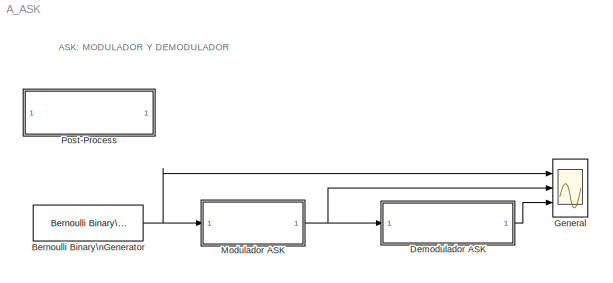
MODEL A_ASK
KIND model
BLOCK [Reference] Bernoulli Binary\nGenerator  REF=commrandsrc2/Bernoulli Binary\nGenerator
  P = PZa
  Ports = [0, 1]
  RTWMemSecDataConstants = Inherit from model
  RTWMemSecDataInternal = Inherit from model
  RTWMemSecDataParameters = Inherit from model
  RTWMemSecFuncExecute = Inherit from model
  RTWMemSecFuncInitTerm = Inherit from model
  SID = 1
  SourceBlock = commrandsrc2/Bernoulli Binary\nGenerator
  SourceProductBaseCode = CM
  SourceType = Bernoulli Binary Generator
  Ts = BSTa
  frameBased = off
  orient = off
  outDataType = double
  sampPerFrame = 1
  seed = 81
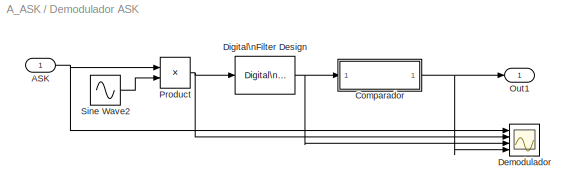
BLOCK [SubSystem] Demodulador ASK
  Ports = [1, 1]
  RequestExecContextInheritance = off
  SID = 17
BLOCK [Inport] Demodulador ASK/ASK
  SID = 18
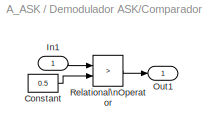
BLOCK [SubSystem] Demodulador ASK/Comparador
  Ports = [1, 1]
  RequestExecContextInheritance = off
  SID = 19
BLOCK [Constant] Demodulador ASK/Comparador/Constant
  SID = 21
  Value = 0.5
BLOCK [Inport] Demodulador ASK/Comparador/In1
  SID = 20
BLOCK [Outport] Demodulador ASK/Comparador/Out1
  SID = 23
BLOCK [RelationalOperator] Demodulador ASK/Comparador/Relational\nOperator
  InputSameDT = off
  Operator = >
  OutDataTypeStr = boolean
  Ports = [2, 1]
  SID = 22
BLOCK [Scope] Demodulador ASK/Demodulador
  Floating = off
  NumInputPorts = 4
  Ports = [4]
  SID = 26
  ScopeSpecificationString = Simulink.scopes.TimeScopeBlockCfg('CurrentConfiguration', extmgr.ConfigurationSet(extmgr.Configuration('Core','General UI',true),extmgr.Configuration('Core','Source UI',true),extmgr.Configuration('Sources','WiredSimulink',true,'DataLoggingSaveFormat','StructureWithTime','DataLoggingDecimation','1','DataLoggingDecimateData',true),extmgr.Configuration('Visuals','Time Domain',true,'SerializedDisplays...<+3682ch>
BLOCK [Reference] Demodulador ASK/Digital\nFilter Design  REF=dsparch4/Digital\nFilter Design
  Ports = [1, 1]
  RTWMemSecDataConstants = Inherit from model
  RTWMemSecDataInternal = Inherit from model
  RTWMemSecDataParameters = Inherit from model
  RTWMemSecFuncExecute = Inherit from model
  RTWMemSecFuncInitTerm = Inherit from model
  SID = 24
  SourceBlock = dsparch4/Digital\nFilter Design
  SourceProductBaseCode = DS
  SourceType = Digital Filter Design
  UserData = DataTag0
  UserDataPersistent = on
  mwdsp_browser_bugfix_var = off
BLOCK [Outport] Demodulador ASK/Out1
  SID = 28
BLOCK [Product] Demodulador ASK/Product
  Ports = [2, 1]
  RndMeth = Zero
  SID = 25
BLOCK [Sin] Demodulador ASK/Sine Wave2
  Amplitude = A3a
  Frequency = 2*10*pi
  Ports = [0, 1]
  SID = 27
  SampleTime = STa
  Samples = SxPa
  SineType = Sample based
BLOCK [Scope] General
  Floating = off
  NumInputPorts = 3
  Ports = [3]
  SID = 15
  ScopeSpecificationString = Simulink.scopes.TimeScopeBlockCfg('CurrentConfiguration', extmgr.ConfigurationSet(extmgr.Configuration('Core','General UI',true),extmgr.Configuration('Core','Source UI',true),extmgr.Configuration('Sources','WiredSimulink',true,'DataLoggingVariableName','ScopeData3','DataLoggingSaveFormat','StructureWithTime','DataLoggingDecimation','1','DataLoggingDecimateData',true),extmgr.Configuration('Visuals'...<+3062ch>
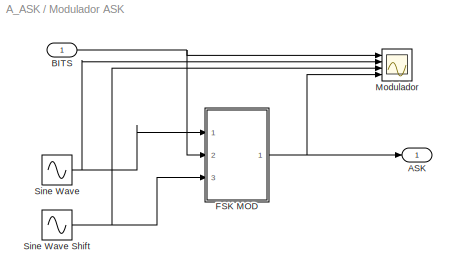
BLOCK [SubSystem] Modulador ASK
  Ports = [1, 1]
  RequestExecContextInheritance = off
  SID = 3
BLOCK [Outport] Modulador ASK/ASK
  SID = 14
BLOCK [Inport] Modulador ASK/BITS
  SID = 4
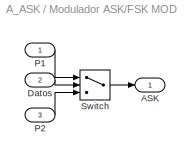
BLOCK [SubSystem] Modulador ASK/FSK MOD
  Ports = [3, 1]
  RequestExecContextInheritance = off
  SID = 5
BLOCK [Outport] Modulador ASK/FSK MOD/ASK
  SID = 10
BLOCK [Inport] Modulador ASK/FSK MOD/Datos
  Port = 2
  SID = 7
BLOCK [Inport] Modulador ASK/FSK MOD/P1
  SID = 6
BLOCK [Inport] Modulador ASK/FSK MOD/P2
  Port = 3
  SID = 8
BLOCK [Switch] Modulador ASK/FSK MOD/Switch
  InputSameDT = off
  SID = 9
  SaturateOnIntegerOverflow = off
  Threshold = 0.5
BLOCK [Scope] Modulador ASK/Modulador
  Floating = off
  NumInputPorts = 4
  Ports = [4]
  SID = 11
  ScopeSpecificationString = Simulink.scopes.TimeScopeBlockCfg('CurrentConfiguration', extmgr.ConfigurationSet(extmgr.Configuration('Core','General UI',true),extmgr.Configuration('Core','Source UI',true),extmgr.Configuration('Sources','WiredSimulink',true,'DataLoggingVariableName','ScopeData1','DataLoggingSaveFormat','StructureWithTime','DataLoggingDecimation','1','DataLoggingDecimateData',true),extmgr.Configuration('Visuals'...<+3713ch>
BLOCK [Sin] Modulador ASK/Sine Wave
  Amplitude = A1a
  Frequency = 2*10*pi
  Ports = [0, 1]
  SID = 13
  SampleTime = STa
  Samples = SxPa
  SineType = Sample based
BLOCK [Sin] Modulador ASK/Sine Wave Shift
  Amplitude = A2a
  Frequency = 2*10*pi
  Phase = -pi
  Ports = [0, 1]
  SID = 12
  SampleTime = STa
  Samples = SxPa
  SineType = Sample based
BLOCK [SubSystem] Post-Process
  Ports = []
  RequestExecContextInheritance = off
  SID = 31
ANNOTATION (root): ASK: MODULADOR Y DEMODULADOR
NET Bernoulli Binary\nGenerator:1 -> General:1, Modulador ASK:1
NET Demodulador ASK/ASK:1 -> Demodulador ASK/Demodulador:1, Demodulador ASK/Product:1
LINE Demodulador ASK/Comparador/Constant:1 -> Demodulador ASK/Comparador/Relational\nOperator:2
LINE Demodulador ASK/Comparador/In1:1 -> Demodulador ASK/Comparador/Relational\nOperator:1
LINE Demodulador ASK/Comparador/Relational\nOperator:1 -> Demodulador ASK/Comparador/Out1:1
NET Demodulador ASK/Comparador:1 -> Demodulador ASK/Demodulador:4, Demodulador ASK/Out1:1
NET Demodulador ASK/Digital\nFilter Design:1 -> Demodulador ASK/Comparador:1, Demodulador ASK/Demodulador:3
NET Demodulador ASK/Product:1 -> Demodulador ASK/Demodulador:2, Demodulador ASK/Digital\nFilter Design:1
LINE Demodulador ASK/Sine Wave2:1 -> Demodulador ASK/Product:2
LINE Demodulador ASK:1 -> General:3
NET Modulador ASK/BITS:1 -> Modulador ASK/FSK MOD:2, Modulador ASK/Modulador:1
LINE Modulador ASK/FSK MOD/Datos:1 -> Modulador ASK/FSK MOD/Switch:2
LINE Modulador ASK/FSK MOD/P1:1 -> Modulador ASK/FSK MOD/Switch:1
LINE Modulador ASK/FSK MOD/P2:1 -> Modulador ASK/FSK MOD/Switch:3
LINE Modulador ASK/FSK MOD/Switch:1 -> Modulador ASK/FSK MOD/ASK:1
NET Modulador ASK/FSK MOD:1 -> Modulador ASK/ASK:1, Modulador ASK/Modulador:4
NET Modulador ASK/Sine Wave Shift:1 -> Modulador ASK/FSK MOD:3, Modulador ASK/Modulador:3
NET Modulador ASK/Sine Wave:1 -> Modulador ASK/FSK MOD:1, Modulador ASK/Modulador:2
NET Modulador ASK:1 -> Demodulador ASK:1, General:2
note: NET lines group one-source signal fan-out (src -> all destinations, sorted); 1:1 wires keep LINE
